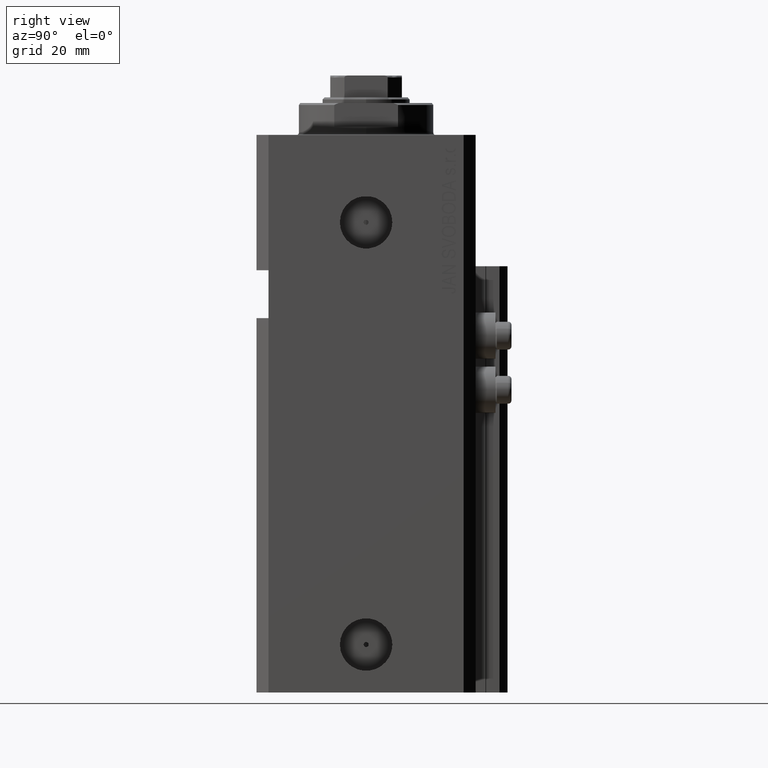
[diagram: clean part render]
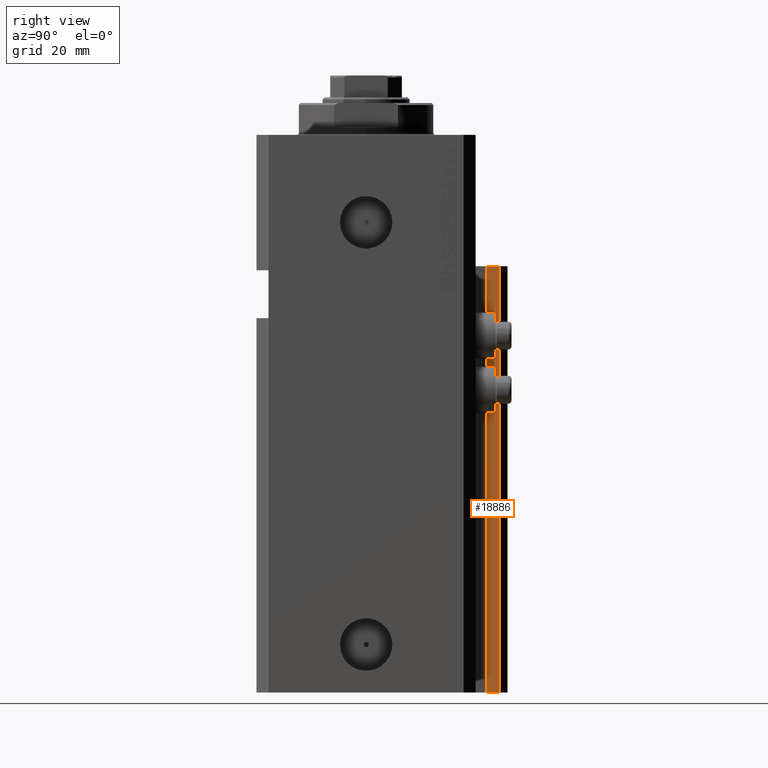
[diagram: same view with one face highlighted and labeled with its STEP entity id]
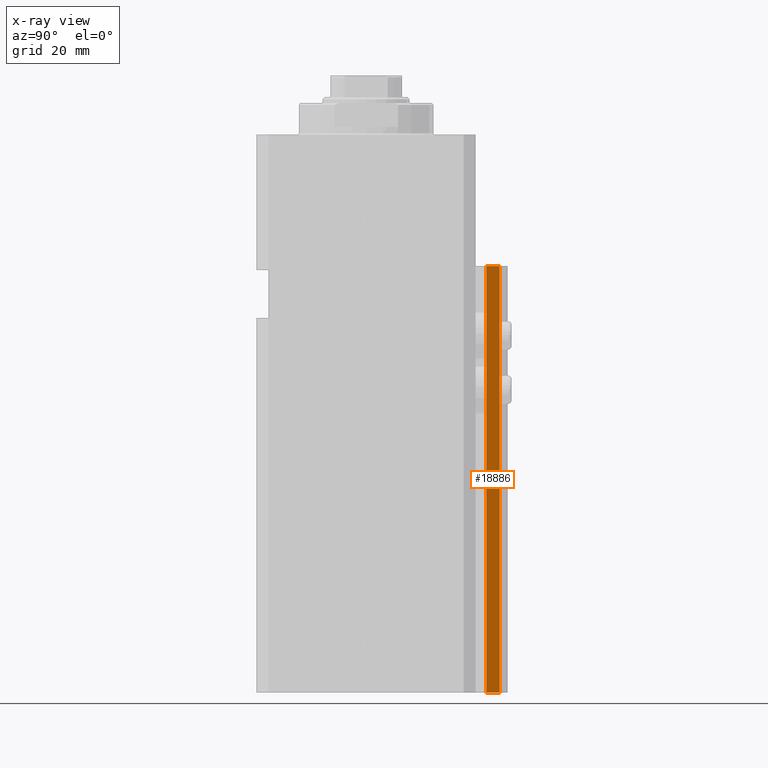
[diagram: x-ray of the same camera — body ghosted, the highlighted face saturated]
A machine part, right view. The second image highlights one B-rep face of the part: STEP entity #18886.
The next image is the same camera in x-ray: the body ghosted, the highlighted face saturated — about 0% of this face is hidden behind the body in this view.
In plain terms, the highlighted planar face has unit normal (1, 0, 0).
Its self-contained STEP definition (entity closure, byte-faithful):
#2468 = ORIENTED_EDGE ( 'NONE', *, *, #28213, .F. ) ;
#3972 = CARTESIAN_POINT ( 'NONE',  ( 12.00000000000000178, 30.20000000000002061, -33.00000000000000000 ) ) ;
#4382 = VECTOR ( 'NONE', #30948, 1000.000000000000000 ) ;
#6572 = CARTESIAN_POINT ( 'NONE',  ( 12.00000000000000000, 33.50000000000001421, -140.0000000000000000 ) ) ;
#6625 = EDGE_CURVE ( 'NONE', #12453, #28654, #8494, .T. ) ;
#6633 = CARTESIAN_POINT ( 'NONE',  ( 12.00000000000000178, 30.20000000000002061, -140.0000000000000000 ) ) ;
#7734 = ORIENTED_EDGE ( 'NONE', *, *, #24143, .T. ) ;
#8494 = LINE ( 'NONE', #20214, #33882 ) ;
#12453 = VERTEX_POINT ( 'NONE', #46270 ) ;
#12844 = CARTESIAN_POINT ( 'NONE',  ( 12.00000000000000000, 33.50000000000001421, -33.00000000000000000 ) ) ;
#14642 = DIRECTION ( 'NONE',  ( -5.256737805990334897E-16, 1.000000000000000000, 0.000000000000000000 ) ) ;
#16085 = LINE ( 'NONE', #34540, #4382 ) ;
#17659 = LINE ( 'NONE', #6633, #38132 ) ;
#18220 = PLANE ( 'NONE',  #34983 ) ;
#18886 = ADVANCED_FACE ( 'NONE', ( #21568 ), #18220, .T. ) ;
#20214 = CARTESIAN_POINT ( 'NONE',  ( 12.00000000000000178, 30.20000000000002061, -140.0000000000000000 ) ) ;
#21568 = FACE_OUTER_BOUND ( 'NONE', #41645, .T. ) ;
#23953 = ORIENTED_EDGE ( 'NONE', *, *, #6625, .T. ) ;
#24143 = EDGE_CURVE ( 'NONE', #28654, #46783, #16085, .T. ) ;
#25965 = VECTOR ( 'NONE', #14642, 1000.000000000000000 ) ;
#27657 = VERTEX_POINT ( 'NONE', #3972 ) ;
#28213 = EDGE_CURVE ( 'NONE', #27657, #46783, #40063, .T. ) ;
#28654 = VERTEX_POINT ( 'NONE', #6572 ) ;
#30948 = DIRECTION ( 'NONE',  ( 0.000000000000000000, 0.000000000000000000, 1.000000000000000000 ) ) ;
#32379 = DIRECTION ( 'NONE',  ( -5.256737805990334897E-16, 1.000000000000000000, 0.000000000000000000 ) ) ;
#33078 = CARTESIAN_POINT ( 'NONE',  ( 12.00000000000000178, 30.20000000000002061, -140.0000000000000000 ) ) ;
#33338 = CARTESIAN_POINT ( 'NONE',  ( 12.00000000000000178, 30.20000000000002061, -33.00000000000000000 ) ) ;
#33882 = VECTOR ( 'NONE', #45863, 1000.000000000000000 ) ;
#34540 = CARTESIAN_POINT ( 'NONE',  ( 12.00000000000000000, 33.50000000000001421, -140.0000000000000000 ) ) ;
#34983 = AXIS2_PLACEMENT_3D ( 'NONE', #33078, #36212, #32379 ) ;
#36212 = DIRECTION ( 'NONE',  ( 1.000000000000000000, 5.256737805990334897E-16, -0.000000000000000000 ) ) ;
#38132 = VECTOR ( 'NONE', #46651, 1000.000000000000000 ) ;
#40063 = LINE ( 'NONE', #33338, #25965 ) ;
#40877 = ORIENTED_EDGE ( 'NONE', *, *, #41229, .F. ) ;
#41229 = EDGE_CURVE ( 'NONE', #12453, #27657, #17659, .T. ) ;
#41645 = EDGE_LOOP ( 'NONE', ( #2468, #40877, #23953, #7734 ) ) ;
#45863 = DIRECTION ( 'NONE',  ( -5.256737805990334897E-16, 1.000000000000000000, 0.000000000000000000 ) ) ;
#46270 = CARTESIAN_POINT ( 'NONE',  ( 12.00000000000000178, 30.20000000000002061, -140.0000000000000000 ) ) ;
#46651 = DIRECTION ( 'NONE',  ( 0.000000000000000000, 0.000000000000000000, 1.000000000000000000 ) ) ;
#46783 = VERTEX_POINT ( 'NONE', #12844 ) ;